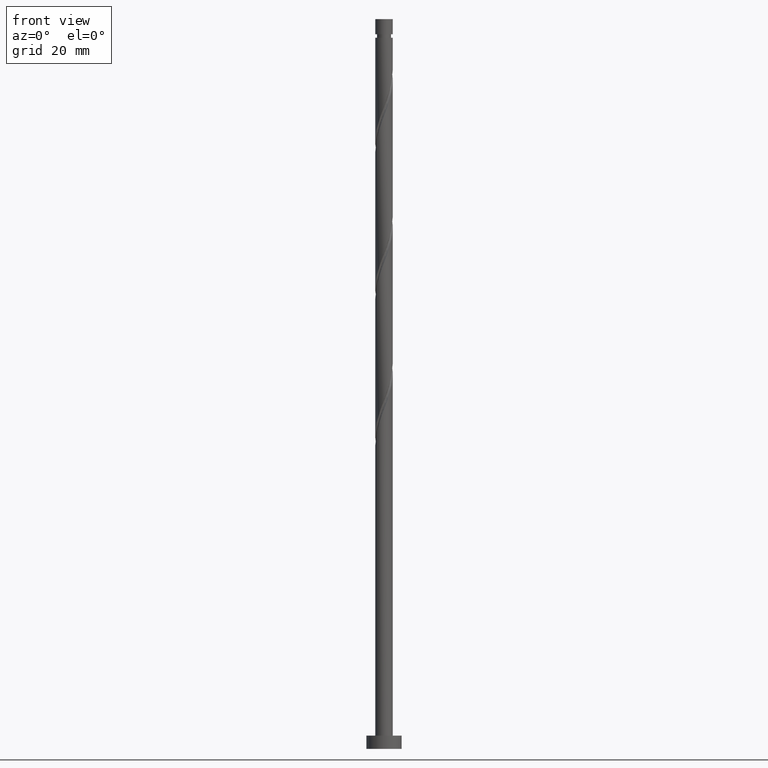
[diagram: clean part render]
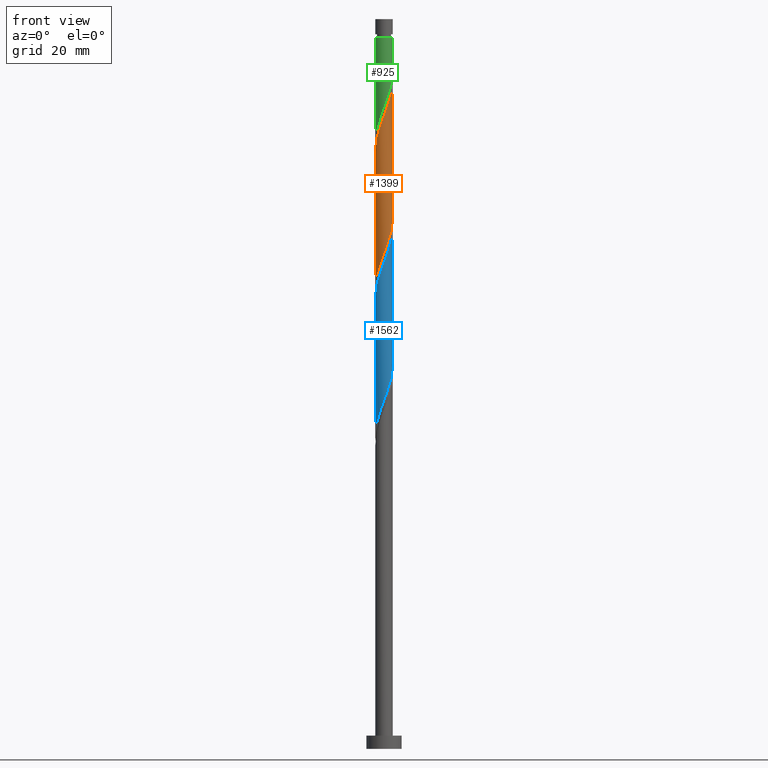
[diagram: same view with three faces highlighted in distinct colors, each labeled with its STEP entity id]
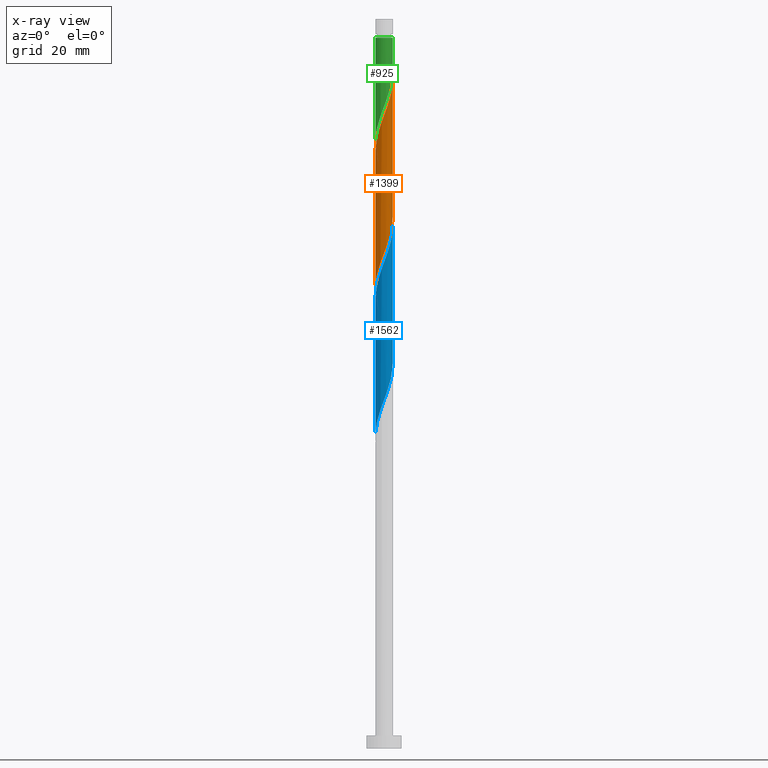
[diagram: x-ray of the same camera — body ghosted, the three highlighted faces saturated]
A machine part, front view with three faces highlighted in distinct colors.
The next image is the same camera in x-ray (body ghosted, the three faces saturated) — at least one of them is partly hidden behind the body in this view.
Their STEP definitions:

[orange] entity #1399 — the highlighted cylindrical surface (edge-blend (fillet) strip) has radius 2 mm, axis along (-0, -0, -1).
#20 = CARTESIAN_POINT ( 'NONE',  ( 1.896407278838826205, -0.6353262412077200771, 150.4508639589602979 ) ) ;
#27 = CARTESIAN_POINT ( 'NONE',  ( 1.127404036555501587, -1.672808912829666150, 146.9786417367380693 ) ) ;
#35 = CARTESIAN_POINT ( 'NONE',  ( 1.521943481029064404, -1.324015695162691131, 148.3675306256269550 ) ) ;
#43 = CARTESIAN_POINT ( 'NONE',  ( 0.8917189533347230634, -1.790205940182200806, 146.2841972922936122 ) ) ;
#50 = CARTESIAN_POINT ( 'NONE',  ( 1.324673758792282996, -1.498412303996178530, 147.6730861811824980 ) ) ;
#76 = VECTOR ( 'NONE', #598, 1000.000000000000000 ) ;
#78 = CYLINDRICAL_SURFACE ( 'NONE', #1238, 2.000000000000000000 ) ;
#103 = LINE ( 'NONE', #1595, #358 ) ;
#159 = CARTESIAN_POINT ( 'NONE',  ( 0.6560338701139444284, -1.907602967534735683, 145.5897528478492120 ) ) ;
#168 = CARTESIAN_POINT ( 'NONE',  ( -2.000000000000003109, -3.259925008709154373E-15, 135.4984084148613590 ) ) ;
#176 = CARTESIAN_POINT ( 'NONE',  ( -1.960000000000003073, -0.3979949748426484524, 136.5619750700714121 ) ) ;
#181 = CARTESIAN_POINT ( 'NONE',  ( 1.324015695162687356, -1.521943481029063072, 116.4230861811825406 ) ) ;
#183 = CARTESIAN_POINT ( 'NONE',  ( 2.000000000000002665, -7.476892221809986216E-16, 152.1650750815280162 ) ) ;
#188 = CARTESIAN_POINT ( 'NONE',  ( 1.907602967534731464, -0.6560338701139456496, 119.2008639589602979 ) ) ;
#250 = CARTESIAN_POINT ( 'NONE',  ( -0.6560338701139450945, -1.907602967534731686, 110.8675306256269693 ) ) ;
#272 = ORIENTED_EDGE ( 'NONE', *, *, #647, .F. ) ;
#346 = CARTESIAN_POINT ( 'NONE',  ( 2.000000000000002665, -7.476892221809986216E-16, 152.1650750815280162 ) ) ;
#358 = VECTOR ( 'NONE', #1424, 1000.000000000000000 ) ;
#391 = CARTESIAN_POINT ( 'NONE',  ( -1.980049565276632340, -0.3856594865056691690, 105.3119750700714405 ) ) ;
#401 = CARTESIAN_POINT ( 'NONE',  ( -1.127404036555501143, -1.672808912829663486, 109.4786417367380551 ) ) ;
#411 = EDGE_CURVE ( 'NONE', #951, #476, #1138, .T. ) ;
#434 = CARTESIAN_POINT ( 'NONE',  ( 0.3979949748426483414, -1.960000000000003073, 144.8953084034047265 ) ) ;
#451 = CARTESIAN_POINT ( 'NONE',  ( 1.667354236715040461, -1.104504345536229781, 149.0619750700714121 ) ) ;
#474 = CARTESIAN_POINT ( 'NONE',  ( -2.000000000000000000, 0.000000000000000000, 165.8000000000000114 ) ) ;
#476 = VERTEX_POINT ( 'NONE', #1129 ) ;
#498 = CARTESIAN_POINT ( 'NONE',  ( 1.104504345536225562, -1.667354236715039129, 115.7286417367380693 ) ) ;
#507 = CARTESIAN_POINT ( 'NONE',  ( -1.896407278838823096, -0.6353262412077171906, 106.0064195145158408 ) ) ;
#551 = CARTESIAN_POINT ( 'NONE',  ( 1.999999999999999556, -2.624389169855325064E-15, 120.9588750586148080 ) ) ;
#574 = CARTESIAN_POINT ( 'NONE',  ( 2.000000000000002665, -0.06148390331534844822, 152.0019113934998529 ) ) ;
#593 = CARTESIAN_POINT ( 'NONE',  ( 1.996223298870952290, -0.1228517034671606500, 151.8397528478491267 ) ) ;
#598 = DIRECTION ( 'NONE',  ( -0.000000000000000000, -0.000000000000000000, -1.000000000000000000 ) ) ;
#612 = CARTESIAN_POINT ( 'NONE',  ( 1.999999999999999556, -2.624389169855325064E-15, 120.9588750586148223 ) ) ;
#647 = EDGE_CURVE ( 'NONE', #1646, #476, #1680, .T. ) ;
#657 = CARTESIAN_POINT ( 'NONE',  ( -1.999999999999999556, -0.06148390331534546449, 104.4553720799762857 ) ) ;
#665 = CARTESIAN_POINT ( 'NONE',  ( -1.521943481029063072, -1.324015695162687578, 108.0897528478491836 ) ) ;
#718 = CARTESIAN_POINT ( 'NONE',  ( -2.000000000000003109, -3.259925008709154373E-15, 135.4984084148613590 ) ) ;
#798 = CARTESIAN_POINT ( 'NONE',  ( -1.324673758792281886, -1.498412303996174755, 108.7841972922936264 ) ) ;
#837 = CARTESIAN_POINT ( 'NONE',  ( -1.672808912829666150, -1.127404036555502254, 138.6453084034047833 ) ) ;
#843 = CARTESIAN_POINT ( 'NONE',  ( -0.8849929959097680987, -1.812764992401018072, 141.4230861811825264 ) ) ;
#883 =( BOUNDED_CURVE ( )  B_SPLINE_CURVE ( 2, ( #168, #1132, #176, #1383, #1263, #837, #1374, #1637, #994, #843, #1246, #970, #1228, #1237, #434, #159, #43, #27, #50, #35, #451, #1105, #20, #1257, #593, #574, #183 ),
 .UNSPECIFIED., .F., .T. ) 
 B_SPLINE_CURVE_WITH_KNOTS ( ( 3, 2, 2, 2, 2, 2, 2, 2, 2, 2, 2, 2, 2, 3 ),
 ( 0.5545317669814461281, 0.5625000000000000000, 0.5729166666666667407, 0.5833333333333332593, 0.5937500000000000000, 0.6041666666666667407, 0.6145833333333332593, 0.6250000000000000000, 0.6354166666666667407, 0.6458333333333332593, 0.6562500000000000000, 0.6666666666666667407, 0.6770833333333332593, 0.6795317669814462391 ),
 .UNSPECIFIED. ) 
 CURVE ( )  GEOMETRIC_REPRESENTATION_ITEM ( )  RATIONAL_B_SPLINE_CURVE ( ( 0.9062941362546513835, 0.9031415850403554657, 0.9090909090909310430, 0.9013135103398492998, 0.9090909090909310430, 0.9013135103398492998, 0.9090909090909310430, 0.9013135103398492998, 0.9090909090909310430, 0.9013135103398492998, 0.9090909090909310430, 0.9013135103398492998, 0.9090909090909310430, 0.9013135103398492998, 0.9090909090909310430, 0.9013135103398492998, 0.9090909090909310430, 0.9013135103398492998, 0.9090909090909310430, 0.9013135103398492998, 0.9090909090909310430, 0.9013135103398492998, 0.9090909090909310430, 0.9013135103398492998, 0.9090909090909310430, 0.9072628343904247661, 0.9062941362546513835 ) ) 
 REPRESENTATION_ITEM ( '' )  );
#896 = CARTESIAN_POINT ( 'NONE',  ( 1.672808912829662376, -1.127404036555502032, 117.8119750700714121 ) ) ;
#926 = CARTESIAN_POINT ( 'NONE',  ( -1.999999999999999556, 2.138391175437672464E-15, 104.2922083919481508 ) ) ;
#951 = VERTEX_POINT ( 'NONE', #718 ) ;
#970 = CARTESIAN_POINT ( 'NONE',  ( -0.3856594865056708343, -1.980049565276635226, 142.8119750700714405 ) ) ;
#994 = CARTESIAN_POINT ( 'NONE',  ( -1.104504345536228671, -1.667354236715041127, 140.7286417367380125 ) ) ;
#1039 = CARTESIAN_POINT ( 'NONE',  ( -1.996223298870949403, -0.1228517034671583186, 104.6175306256269550 ) ) ;
#1045 = FACE_OUTER_BOUND ( 'NONE', #1335, .T. ) ;
#1054 = DIRECTION ( 'NONE',  ( -1.000000000000000000, 0.000000000000000000, 0.000000000000000000 ) ) ;
#1064 = EDGE_CURVE ( 'NONE', #951, #1164, #883, .T. ) ;
#1105 = CARTESIAN_POINT ( 'NONE',  ( 1.812764992401017849, -0.8849929959097680987, 149.7564195145157839 ) ) ;
#1129 = CARTESIAN_POINT ( 'NONE',  ( -1.999999999999999556, 2.138391175437672464E-15, 104.2922083919481508 ) ) ;
#1132 = CARTESIAN_POINT ( 'NONE',  ( -2.000000000000003553, -0.2010075630518398104, 136.0318347840506306 ) ) ;
#1138 = LINE ( 'NONE', #474, #76 ) ;
#1146 = CARTESIAN_POINT ( 'NONE',  ( 2.000000000000000000, -0.2010075630518413370, 120.4254486894255365 ) ) ;
#1164 = VERTEX_POINT ( 'NONE', #346 ) ;
#1170 = CARTESIAN_POINT ( 'NONE',  ( 0.1228517034671577218, -1.996223298870949403, 112.9508639589602979 ) ) ;
#1174 = DIRECTION ( 'NONE',  ( -0.000000000000000000, -0.000000000000000000, -1.000000000000000000 ) ) ;
#1178 = CARTESIAN_POINT ( 'NONE',  ( -1.812764992401016073, -0.8849929959097654342, 106.7008639589603121 ) ) ;
#1228 = CARTESIAN_POINT ( 'NONE',  ( -0.1228517034671596508, -1.996223298870952290, 143.5064195145158408 ) ) ;
#1237 = CARTESIAN_POINT ( 'NONE',  ( 0.1399560795713515327, -2.012397032465270463, 144.2008639589602694 ) ) ;
#1238 = AXIS2_PLACEMENT_3D ( 'NONE', #1569, #1174, #1054 ) ;
#1246 = CARTESIAN_POINT ( 'NONE',  ( -0.6353262412077199661, -1.896407278838826205, 142.1175306256270119 ) ) ;
#1257 = CARTESIAN_POINT ( 'NONE',  ( 1.980049565276634782, -0.3856594865056718335, 151.1453084034047549 ) ) ;
#1262 = CARTESIAN_POINT ( 'NONE',  ( 0.8849929959097654342, -1.812764992401016073, 115.0341972922936549 ) ) ;
#1263 = CARTESIAN_POINT ( 'NONE',  ( -1.790205940182200361, -0.8917189533347235075, 137.9508639589602694 ) ) ;
#1269 = CARTESIAN_POINT ( 'NONE',  ( 0.6353262412077169685, -1.896407278838823318, 114.3397528478491552 ) ) ;
#1321 = CARTESIAN_POINT ( 'NONE',  ( -0.1399560795713530592, -2.012397032465266911, 112.2564195145158408 ) ) ;
#1331 = CARTESIAN_POINT ( 'NONE',  ( -1.667354236715038462, -1.104504345536226229, 107.3953084034047123 ) ) ;
#1335 = EDGE_LOOP ( 'NONE', ( #1453, #1343, #1487, #272 ) ) ;
#1343 = ORIENTED_EDGE ( 'NONE', *, *, #1064, .F. ) ;
#1374 = CARTESIAN_POINT ( 'NONE',  ( -1.498412303996178307, -1.324673758792283218, 139.3397528478491552 ) ) ;
#1383 = CARTESIAN_POINT ( 'NONE',  ( -1.907602967534735683, -0.6560338701139445394, 137.2564195145158976 ) ) ;
#1399 = ADVANCED_FACE ( 'NONE', ( #1045 ), #78, .T. ) ;
#1402 = CARTESIAN_POINT ( 'NONE',  ( 1.959999999999999520, -0.3979949748426485079, 119.8953084034047123 ) ) ;
#1424 = DIRECTION ( 'NONE',  ( -0.000000000000000000, -0.000000000000000000, -1.000000000000000000 ) ) ;
#1453 = ORIENTED_EDGE ( 'NONE', *, *, #1501, .F. ) ;
#1466 = CARTESIAN_POINT ( 'NONE',  ( -0.3979949748426485079, -1.959999999999999520, 111.5619750700713837 ) ) ;
#1474 = CARTESIAN_POINT ( 'NONE',  ( -0.8917189533347229524, -1.790205940182196809, 110.1730861811824980 ) ) ;
#1487 = ORIENTED_EDGE ( 'NONE', *, *, #411, .T. ) ;
#1501 = EDGE_CURVE ( 'NONE', #1164, #1646, #103, .T. ) ;
#1569 = CARTESIAN_POINT ( 'NONE',  ( 0.000000000000000000, 0.000000000000000000, 165.8000000000000114 ) ) ;
#1595 = CARTESIAN_POINT ( 'NONE',  ( 2.000000000000000000, 2.449293598294706414E-16, 165.8000000000000114 ) ) ;
#1637 = CARTESIAN_POINT ( 'NONE',  ( -1.324015695162691131, -1.521943481029064404, 140.0341972922936407 ) ) ;
#1646 = VERTEX_POINT ( 'NONE', #551 ) ;
#1680 =( BOUNDED_CURVE ( )  B_SPLINE_CURVE ( 2, ( #612, #1146, #1402, #188, #1684, #896, #1701, #181, #498, #1262, #1269, #1740, #1170, #1321, #1466, #250, #1474, #401, #798, #665, #1331, #1178, #507, #391, #1039, #657, #926 ),
 .UNSPECIFIED., .F., .T. ) 
 B_SPLINE_CURVE_WITH_KNOTS ( ( 3, 2, 2, 2, 2, 2, 2, 2, 2, 2, 2, 2, 2, 3 ),
 ( 0.5545317669814462391, 0.5625000000000000000, 0.5729166666666666297, 0.5833333333333333703, 0.5937500000000000000, 0.6041666666666666297, 0.6145833333333333703, 0.6250000000000000000, 0.6354166666666666297, 0.6458333333333333703, 0.6562500000000000000, 0.6666666666666666297, 0.6770833333333333703, 0.6795317669814463502 ),
 .UNSPECIFIED. ) 
 CURVE ( )  GEOMETRIC_REPRESENTATION_ITEM ( )  RATIONAL_B_SPLINE_CURVE ( ( 0.9062941362546447222, 0.9031415850403488044, 0.9090909090909243817, 0.9013135103398426384, 0.9090909090909243817, 0.9013135103398426384, 0.9090909090909243817, 0.9013135103398426384, 0.9090909090909243817, 0.9013135103398426384, 0.9090909090909243817, 0.9013135103398426384, 0.9090909090909243817, 0.9013135103398426384, 0.9090909090909243817, 0.9013135103398426384, 0.9090909090909243817, 0.9013135103398426384, 0.9090909090909243817, 0.9013135103398426384, 0.9090909090909243817, 0.9013135103398426384, 0.9090909090909243817, 0.9013135103398426384, 0.9090909090909243817, 0.9072628343904179937, 0.9062941362546445001 ) ) 
 REPRESENTATION_ITEM ( '' )  );
#1684 = CARTESIAN_POINT ( 'NONE',  ( 1.790205940182196587, -0.8917189533347237296, 118.5064195145158550 ) ) ;
#1701 = CARTESIAN_POINT ( 'NONE',  ( 1.498412303996174755, -1.324673758792282108, 117.1175306256269408 ) ) ;
#1740 = CARTESIAN_POINT ( 'NONE',  ( 0.3856594865056685584, -1.980049565276632340, 113.6453084034047407 ) ) ;

[blue] entity #1562 — the highlighted cylindrical surface (edge-blend (fillet) strip) has radius 2 mm, axis along (-0, -0, -1).
#5 = DIRECTION ( 'NONE',  ( -0.000000000000000000, -0.000000000000000000, -1.000000000000000000 ) ) ;
#33 = CARTESIAN_POINT ( 'NONE',  ( 1.996223298870952290, -0.1228517034671606500, 118.5064195145158408 ) ) ;
#40 = CARTESIAN_POINT ( 'NONE',  ( 1.667354236715040461, -1.104504345536229781, 115.7286417367380693 ) ) ;
#75 = CARTESIAN_POINT ( 'NONE',  ( 0.3856594865056685584, -1.980049565276632340, 80.31197507007142633 ) ) ;
#87 = CARTESIAN_POINT ( 'NONE',  ( 1.498412303996174755, -1.324673758792282108, 83.78419729229362645 ) ) ;
#96 = CARTESIAN_POINT ( 'NONE',  ( -1.996223298870949403, -0.1228517034671583186, 71.28419729229362645 ) ) ;
#111 = CARTESIAN_POINT ( 'NONE',  ( -1.104504345536228671, -1.667354236715041127, 107.3953084034047407 ) ) ;
#138 =( BOUNDED_CURVE ( )  B_SPLINE_CURVE ( 2, ( #1723, #520, #1059, #929, #1457, #242, #792, #1325, #111, #1600, #431, #319, #1102, #712, #308, #1627, #1644, #1093, #858, #440, #40, #849, #1244, #1379, #33, #449, #173 ),
 .UNSPECIFIED., .F., .T. ) 
 B_SPLINE_CURVE_WITH_KNOTS ( ( 3, 2, 2, 2, 2, 2, 2, 2, 2, 2, 2, 2, 2, 3 ),
 ( 0.3045317669814463502, 0.3125000000000000000, 0.3229166666666666297, 0.3333333333333333703, 0.3437500000000000000, 0.3541666666666666297, 0.3645833333333333703, 0.3750000000000000000, 0.3854166666666666297, 0.3958333333333333703, 0.4062500000000000000, 0.4166666666666666297, 0.4270833333333333703, 0.4295317669814466277 ),
 .UNSPECIFIED. ) 
 CURVE ( )  GEOMETRIC_REPRESENTATION_ITEM ( )  RATIONAL_B_SPLINE_CURVE ( ( 0.9062941362546511614, 0.9031415850403554657, 0.9090909090909310430, 0.9013135103398492998, 0.9090909090909310430, 0.9013135103398492998, 0.9090909090909310430, 0.9013135103398492998, 0.9090909090909310430, 0.9013135103398492998, 0.9090909090909310430, 0.9013135103398492998, 0.9090909090909310430, 0.9013135103398492998, 0.9090909090909310430, 0.9013135103398492998, 0.9090909090909310430, 0.9013135103398492998, 0.9090909090909310430, 0.9013135103398492998, 0.9090909090909310430, 0.9013135103398492998, 0.9090909090909310430, 0.9013135103398492998, 0.9090909090909310430, 0.9072628343904245440, 0.9062941362546510504 ) ) 
 REPRESENTATION_ITEM ( '' )  );
#150 = VERTEX_POINT ( 'NONE', #1182 ) ;
#167 = EDGE_CURVE ( 'NONE', #271, #150, #138, .T. ) ;
#173 = CARTESIAN_POINT ( 'NONE',  ( 2.000000000000002665, -8.972270666171985530E-17, 118.8317417481946876 ) ) ;
#210 = LINE ( 'NONE', #326, #278 ) ;
#236 = DIRECTION ( 'NONE',  ( -0.000000000000000000, -0.000000000000000000, -1.000000000000000000 ) ) ;
#242 = CARTESIAN_POINT ( 'NONE',  ( -1.672808912829666150, -1.127404036555502254, 105.3119750700714548 ) ) ;
#244 = CYLINDRICAL_SURFACE ( 'NONE', #888, 2.000000000000000000 ) ;
#266 = CARTESIAN_POINT ( 'NONE',  ( 1.959999999999999520, -0.3979949748426485079, 86.56197507007141212 ) ) ;
#271 = VERTEX_POINT ( 'NONE', #563 ) ;
#278 = VECTOR ( 'NONE', #360, 1000.000000000000000 ) ;
#279 = EDGE_LOOP ( 'NONE', ( #565, #1010, #942, #500 ) ) ;
#308 = CARTESIAN_POINT ( 'NONE',  ( 0.3979949748426483414, -1.960000000000003073, 111.5619750700713837 ) ) ;
#319 = CARTESIAN_POINT ( 'NONE',  ( -0.3856594865056708343, -1.980049565276635226, 109.4786417367380977 ) ) ;
#326 = CARTESIAN_POINT ( 'NONE',  ( -2.000000000000000000, 0.000000000000000000, 165.8000000000000114 ) ) ;
#335 = CARTESIAN_POINT ( 'NONE',  ( -1.812764992401016073, -0.8849929959097654342, 73.36753062562694083 ) ) ;
#343 = CARTESIAN_POINT ( 'NONE',  ( -1.896407278838823096, -0.6353262412077171906, 72.67308618118248376 ) ) ;
#354 = CARTESIAN_POINT ( 'NONE',  ( 1.324015695162687356, -1.521943481029063072, 83.08975284784921200 ) ) ;
#360 = DIRECTION ( 'NONE',  ( -0.000000000000000000, -0.000000000000000000, -1.000000000000000000 ) ) ;
#374 = CARTESIAN_POINT ( 'NONE',  ( 1.907602967534731464, -0.6560338701139456496, 85.86753062562698346 ) ) ;
#431 = CARTESIAN_POINT ( 'NONE',  ( -0.6353262412077199661, -1.896407278838826205, 108.7841972922935980 ) ) ;
#440 = CARTESIAN_POINT ( 'NONE',  ( 1.521943481029064404, -1.324015695162691131, 115.0341972922936407 ) ) ;
#449 = CARTESIAN_POINT ( 'NONE',  ( 2.000000000000003109, -0.06148390331534081543, 118.6685780601665243 ) ) ;
#494 = CARTESIAN_POINT ( 'NONE',  ( 1.672808912829662376, -1.127404036555502032, 84.47864173673808352 ) ) ;
#496 = CARTESIAN_POINT ( 'NONE',  ( -1.999999999999999556, -3.454324206476239315E-15, 70.95887505861480804 ) ) ;
#500 = ORIENTED_EDGE ( 'NONE', *, *, #1689, .F. ) ;
#512 = CARTESIAN_POINT ( 'NONE',  ( 1.790205940182196587, -0.8917189533347237296, 85.17308618118249797 ) ) ;
#520 = CARTESIAN_POINT ( 'NONE',  ( -2.000000000000002665, -0.2010075630518432244, 102.6985014507172735 ) ) ;
#545 =( BOUNDED_CURVE ( )  B_SPLINE_CURVE ( 2, ( #943, #1479, #266, #374, #512, #494, #87, #354, #753, #1148, #874, #75, #650, #1438, #1184, #774, #891, #1557, #1307, #745, #1430, #335, #343, #900, #96, #1280, #1414 ),
 .UNSPECIFIED., .F., .T. ) 
 B_SPLINE_CURVE_WITH_KNOTS ( ( 3, 2, 2, 2, 2, 2, 2, 2, 2, 2, 2, 2, 2, 3 ),
 ( 0.8045317669814464612, 0.8125000000000000000, 0.8229166666666666297, 0.8333333333333333703, 0.8437500000000000000, 0.8541666666666666297, 0.8645833333333333703, 0.8750000000000000000, 0.8854166666666666297, 0.8958333333333333703, 0.9062500000000000000, 0.9166666666666666297, 0.9270833333333333703, 0.9295317669814462391 ),
 .UNSPECIFIED. ) 
 CURVE ( )  GEOMETRIC_REPRESENTATION_ITEM ( )  RATIONAL_B_SPLINE_CURVE ( ( 0.9062941362546445001, 0.9031415850403490264, 0.9090909090909243817, 0.9013135103398426384, 0.9090909090909243817, 0.9013135103398426384, 0.9090909090909243817, 0.9013135103398426384, 0.9090909090909243817, 0.9013135103398426384, 0.9090909090909243817, 0.9013135103398426384, 0.9090909090909243817, 0.9013135103398426384, 0.9090909090909243817, 0.9013135103398426384, 0.9090909090909243817, 0.9013135103398426384, 0.9090909090909243817, 0.9013135103398426384, 0.9090909090909243817, 0.9013135103398426384, 0.9090909090909243817, 0.9013135103398426384, 0.9090909090909243817, 0.9072628343904182158, 0.9062941362546447222 ) ) 
 REPRESENTATION_ITEM ( '' )  );
#563 = CARTESIAN_POINT ( 'NONE',  ( -2.000000000000002665, 4.448750871976942425E-15, 102.1650750815280020 ) ) ;
#565 = ORIENTED_EDGE ( 'NONE', *, *, #1639, .F. ) ;
#588 = VECTOR ( 'NONE', #5, 1000.000000000000000 ) ;
#626 = EDGE_CURVE ( 'NONE', #271, #1478, #210, .T. ) ;
#650 = CARTESIAN_POINT ( 'NONE',  ( 0.1228517034671577218, -1.996223298870949403, 79.61753062562695504 ) ) ;
#679 = LINE ( 'NONE', #1204, #588 ) ;
#712 = CARTESIAN_POINT ( 'NONE',  ( 0.1399560795713515327, -2.012397032465270463, 110.8675306256269835 ) ) ;
#745 = CARTESIAN_POINT ( 'NONE',  ( -1.521943481029063072, -1.324015695162687578, 74.75641951451584077 ) ) ;
#753 = CARTESIAN_POINT ( 'NONE',  ( 1.104504345536225562, -1.667354236715039129, 82.39530840340475493 ) ) ;
#774 = CARTESIAN_POINT ( 'NONE',  ( -0.6560338701139450945, -1.907602967534731686, 77.53419729229364066 ) ) ;
#776 = CARTESIAN_POINT ( 'NONE',  ( 0.000000000000000000, 0.000000000000000000, 165.8000000000000114 ) ) ;
#792 = CARTESIAN_POINT ( 'NONE',  ( -1.498412303996178307, -1.324673758792283218, 106.0064195145158550 ) ) ;
#795 = DIRECTION ( 'NONE',  ( -1.000000000000000000, 0.000000000000000000, 0.000000000000000000 ) ) ;
#849 = CARTESIAN_POINT ( 'NONE',  ( 1.812764992401017849, -0.8849929959097680987, 116.4230861811825406 ) ) ;
#858 = CARTESIAN_POINT ( 'NONE',  ( 1.324673758792282996, -1.498412303996178530, 114.3397528478491836 ) ) ;
#874 = CARTESIAN_POINT ( 'NONE',  ( 0.6353262412077169685, -1.896407278838823318, 81.00641951451585498 ) ) ;
#888 = AXIS2_PLACEMENT_3D ( 'NONE', #776, #236, #795 ) ;
#891 = CARTESIAN_POINT ( 'NONE',  ( -0.8917189533347229524, -1.790205940182196809, 76.83975284784919779 ) ) ;
#900 = CARTESIAN_POINT ( 'NONE',  ( -1.980049565276632340, -0.3856594865056691690, 71.97864173673806931 ) ) ;
#929 = CARTESIAN_POINT ( 'NONE',  ( -1.907602967534735683, -0.6560338701139445394, 103.9230861811825264 ) ) ;
#942 = ORIENTED_EDGE ( 'NONE', *, *, #626, .T. ) ;
#943 = CARTESIAN_POINT ( 'NONE',  ( 1.999999999999999556, -2.624389169855325064E-15, 87.62554172528147944 ) ) ;
#1010 = ORIENTED_EDGE ( 'NONE', *, *, #167, .F. ) ;
#1059 = CARTESIAN_POINT ( 'NONE',  ( -1.960000000000003073, -0.3979949748426484524, 103.2286417367380693 ) ) ;
#1093 = CARTESIAN_POINT ( 'NONE',  ( 1.127404036555501587, -1.672808912829666150, 113.6453084034047265 ) ) ;
#1102 = CARTESIAN_POINT ( 'NONE',  ( -0.1228517034671596508, -1.996223298870952290, 110.1730861811825122 ) ) ;
#1127 = CARTESIAN_POINT ( 'NONE',  ( 1.999999999999999556, -2.624389169855325064E-15, 87.62554172528147944 ) ) ;
#1148 = CARTESIAN_POINT ( 'NONE',  ( 0.8849929959097654342, -1.812764992401016073, 81.70086395896031206 ) ) ;
#1182 = CARTESIAN_POINT ( 'NONE',  ( 2.000000000000002665, -8.972270666171985530E-17, 118.8317417481947018 ) ) ;
#1184 = CARTESIAN_POINT ( 'NONE',  ( -0.3979949748426485079, -1.959999999999999520, 78.22864173673805510 ) ) ;
#1204 = CARTESIAN_POINT ( 'NONE',  ( 2.000000000000000000, 2.449293598294706414E-16, 165.8000000000000114 ) ) ;
#1244 = CARTESIAN_POINT ( 'NONE',  ( 1.896407278838826205, -0.6353262412077200771, 117.1175306256269693 ) ) ;
#1271 = VERTEX_POINT ( 'NONE', #1127 ) ;
#1280 = CARTESIAN_POINT ( 'NONE',  ( -1.999999999999999112, -0.06148390331534825393, 71.12203874664297132 ) ) ;
#1307 = CARTESIAN_POINT ( 'NONE',  ( -1.324673758792281886, -1.498412303996174755, 75.45086395896028364 ) ) ;
#1325 = CARTESIAN_POINT ( 'NONE',  ( -1.324015695162691131, -1.521943481029064404, 106.7008639589602979 ) ) ;
#1379 = CARTESIAN_POINT ( 'NONE',  ( 1.980049565276634782, -0.3856594865056718335, 117.8119750700713837 ) ) ;
#1414 = CARTESIAN_POINT ( 'NONE',  ( -1.999999999999999556, -3.454324206476239315E-15, 70.95887505861480804 ) ) ;
#1430 = CARTESIAN_POINT ( 'NONE',  ( -1.667354236715038462, -1.104504345536226229, 74.06197507007139791 ) ) ;
#1438 = CARTESIAN_POINT ( 'NONE',  ( -0.1399560795713530592, -2.012397032465266911, 78.92308618118254060 ) ) ;
#1440 = FACE_OUTER_BOUND ( 'NONE', #279, .T. ) ;
#1457 = CARTESIAN_POINT ( 'NONE',  ( -1.790205940182200361, -0.8917189533347235075, 104.6175306256269693 ) ) ;
#1478 = VERTEX_POINT ( 'NONE', #496 ) ;
#1479 = CARTESIAN_POINT ( 'NONE',  ( 1.999999999999998668, -0.2010075630518468326, 87.09211535609219368 ) ) ;
#1557 = CARTESIAN_POINT ( 'NONE',  ( -1.127404036555501143, -1.672808912829663486, 76.14530840340474072 ) ) ;
#1562 = ADVANCED_FACE ( 'NONE', ( #1440 ), #244, .T. ) ;
#1600 = CARTESIAN_POINT ( 'NONE',  ( -0.8849929959097680987, -1.812764992401018072, 108.0897528478491836 ) ) ;
#1627 = CARTESIAN_POINT ( 'NONE',  ( 0.6560338701139444284, -1.907602967534735683, 112.2564195145158408 ) ) ;
#1639 = EDGE_CURVE ( 'NONE', #150, #1271, #679, .T. ) ;
#1644 = CARTESIAN_POINT ( 'NONE',  ( 0.8917189533347230634, -1.790205940182200806, 112.9508639589602836 ) ) ;
#1689 = EDGE_CURVE ( 'NONE', #1271, #1478, #545, .T. ) ;
#1723 = CARTESIAN_POINT ( 'NONE',  ( -2.000000000000002665, 4.448750871976943214E-15, 102.1650750815280020 ) ) ;

[green] entity #925 — the highlighted cylindrical surface (edge-blend (fillet) strip) has radius 2 mm, axis along (-0, -0, -1).
#24 = VECTOR ( 'NONE', #561, 1000.000000000000000 ) ;
#38 = CARTESIAN_POINT ( 'NONE',  ( -1.324673758792281886, -1.498412303996174755, 142.1175306256269550 ) ) ;
#109 = CARTESIAN_POINT ( 'NONE',  ( 1.790205940182196587, -0.8917189533347237296, 151.8397528478492120 ) ) ;
#136 = CARTESIAN_POINT ( 'NONE',  ( -1.667354236715038462, -1.104504345536226229, 140.7286417367380125 ) ) ;
#146 = CARTESIAN_POINT ( 'NONE',  ( -1.999999999999998668, -0.06148390331535274339, 137.7887054133096285 ) ) ;
#154 = CARTESIAN_POINT ( 'NONE',  ( -1.996223298870949403, -0.1228517034671583186, 137.9508639589602694 ) ) ;
#199 = EDGE_LOOP ( 'NONE', ( #539, #1714, #509, #1413 ) ) ;
#217 = CARTESIAN_POINT ( 'NONE',  ( -1.999999999999999556, -1.330886815482187283E-15, 137.6255417252814937 ) ) ;
#305 = LINE ( 'NONE', #965, #24 ) ;
#363 = LINE ( 'NONE', #1288, #1253 ) ;
#371 = CARTESIAN_POINT ( 'NONE',  ( 1.907602967534731464, -0.6560338701139456496, 152.5341972922936122 ) ) ;
#383 = CARTESIAN_POINT ( 'NONE',  ( 0.1228517034671577218, -1.996223298870949403, 146.2841972922936122 ) ) ;
#424 = CARTESIAN_POINT ( 'NONE',  ( -1.999999999999992228, 0.000000000000000000, 161.5619750700714121 ) ) ;
#509 = ORIENTED_EDGE ( 'NONE', *, *, #1736, .T. ) ;
#518 = CARTESIAN_POINT ( 'NONE',  ( 1.498412303996174755, -1.324673758792282108, 150.4508639589603263 ) ) ;
#527 = CARTESIAN_POINT ( 'NONE',  ( -0.6560338701139450945, -1.907602967534731686, 144.2008639589603263 ) ) ;
#539 = ORIENTED_EDGE ( 'NONE', *, *, #779, .F. ) ;
#561 = DIRECTION ( 'NONE',  ( -0.000000000000000000, -0.000000000000000000, -1.000000000000000000 ) ) ;
#569 = AXIS2_PLACEMENT_3D ( 'NONE', #813, #1091, #1656 ) ;
#575 = EDGE_CURVE ( 'NONE', #1324, #1019, #678, .T. ) ;
#579 = CARTESIAN_POINT ( 'NONE',  ( -1.896407278838823096, -0.6353262412077171906, 139.3397528478491552 ) ) ;
#589 = CARTESIAN_POINT ( 'NONE',  ( -1.999999999999999556, -1.330886815482187480E-15, 137.6255417252814937 ) ) ;
#638 = CARTESIAN_POINT ( 'NONE',  ( 1.104504345536225562, -1.667354236715039129, 149.0619750700713553 ) ) ;
#641 = DIRECTION ( 'NONE',  ( -0.000000000000000000, -0.000000000000000000, -1.000000000000000000 ) ) ;
#678 = CIRCLE ( 'NONE', #1210, 1.999999999999992228 ) ;
#709 = CARTESIAN_POINT ( 'NONE',  ( 1.999999999999999556, 8.075043599554843923E-16, 154.2922083919481224 ) ) ;
#752 = EDGE_CURVE ( 'NONE', #773, #1497, #945, .T. ) ;
#773 = VERTEX_POINT ( 'NONE', #709 ) ;
#779 = EDGE_CURVE ( 'NONE', #1324, #773, #305, .T. ) ;
#789 = CARTESIAN_POINT ( 'NONE',  ( -1.127404036555501143, -1.672808912829663486, 142.8119750700714405 ) ) ;
#813 = CARTESIAN_POINT ( 'NONE',  ( 0.000000000000000000, 0.000000000000000000, 165.8000000000000114 ) ) ;
#907 = CARTESIAN_POINT ( 'NONE',  ( 0.8849929959097654342, -1.812764992401016073, 148.3675306256269835 ) ) ;
#916 = CARTESIAN_POINT ( 'NONE',  ( 0.6353262412077169685, -1.896407278838823318, 147.6730861811825264 ) ) ;
#925 = ADVANCED_FACE ( 'NONE', ( #1649 ), #1083, .T. ) ;
#934 = CARTESIAN_POINT ( 'NONE',  ( 1.999999999999992228, 2.449293598294701484E-16, 161.5619750700714121 ) ) ;
#945 =( BOUNDED_CURVE ( )  B_SPLINE_CURVE ( 2, ( #1583, #1075, #1617, #371, #109, #1304, #518, #1591, #638, #907, #916, #1444, #383, #1190, #1454, #527, #1057, #789, #38, #1360, #136, #973, #579, #1482, #154, #146, #589 ),
 .UNSPECIFIED., .F., .T. ) 
 B_SPLINE_CURVE_WITH_KNOTS ( ( 3, 2, 2, 2, 2, 2, 2, 2, 2, 2, 2, 2, 2, 3 ),
 ( 0.3045317669814464057, 0.3125000000000000000, 0.3229166666666666852, 0.3333333333333333148, 0.3437500000000000000, 0.3541666666666666852, 0.3645833333333333148, 0.3750000000000000000, 0.3854166666666666852, 0.3958333333333333148, 0.4062500000000000000, 0.4166666666666666852, 0.4270833333333333148, 0.4295317669814460171 ),
 .UNSPECIFIED. ) 
 CURVE ( )  GEOMETRIC_REPRESENTATION_ITEM ( )  RATIONAL_B_SPLINE_CURVE ( ( 0.9062941362546447222, 0.9031415850403490264, 0.9090909090909243817, 0.9013135103398426384, 0.9090909090909243817, 0.9013135103398426384, 0.9090909090909243817, 0.9013135103398426384, 0.9090909090909243817, 0.9013135103398426384, 0.9090909090909243817, 0.9013135103398426384, 0.9090909090909243817, 0.9013135103398426384, 0.9090909090909243817, 0.9013135103398426384, 0.9090909090909243817, 0.9013135103398426384, 0.9090909090909243817, 0.9013135103398426384, 0.9090909090909243817, 0.9013135103398426384, 0.9090909090909243817, 0.9013135103398426384, 0.9090909090909243817, 0.9072628343904183268, 0.9062941362546449442 ) ) 
 REPRESENTATION_ITEM ( '' )  );
#965 = CARTESIAN_POINT ( 'NONE',  ( 2.000000000000000000, 2.449293598294706414E-16, 165.8000000000000114 ) ) ;
#973 = CARTESIAN_POINT ( 'NONE',  ( -1.812764992401016073, -0.8849929959097654342, 140.0341972922936122 ) ) ;
#1019 = VERTEX_POINT ( 'NONE', #424 ) ;
#1057 = CARTESIAN_POINT ( 'NONE',  ( -0.8917189533347229524, -1.790205940182196809, 143.5064195145158124 ) ) ;
#1075 = CARTESIAN_POINT ( 'NONE',  ( 1.999999999999999112, -0.2010075630518464995, 153.7587820227588509 ) ) ;
#1083 = CYLINDRICAL_SURFACE ( 'NONE', #569, 2.000000000000000000 ) ;
#1091 = DIRECTION ( 'NONE',  ( -0.000000000000000000, -0.000000000000000000, -1.000000000000000000 ) ) ;
#1162 = DIRECTION ( 'NONE',  ( -1.000000000000000000, 0.000000000000000000, 0.000000000000000000 ) ) ;
#1190 = CARTESIAN_POINT ( 'NONE',  ( -0.1399560795713530592, -2.012397032465266911, 145.5897528478492120 ) ) ;
#1210 = AXIS2_PLACEMENT_3D ( 'NONE', #1296, #1277, #1162 ) ;
#1253 = VECTOR ( 'NONE', #641, 1000.000000000000000 ) ;
#1277 = DIRECTION ( 'NONE',  ( -0.000000000000000000, -0.000000000000000000, -1.000000000000000000 ) ) ;
#1288 = CARTESIAN_POINT ( 'NONE',  ( -2.000000000000000000, 0.000000000000000000, 165.8000000000000114 ) ) ;
#1296 = CARTESIAN_POINT ( 'NONE',  ( 0.000000000000000000, 0.000000000000000000, 161.5619750700714121 ) ) ;
#1304 = CARTESIAN_POINT ( 'NONE',  ( 1.672808912829662376, -1.127404036555502032, 151.1453084034047265 ) ) ;
#1324 = VERTEX_POINT ( 'NONE', #934 ) ;
#1360 = CARTESIAN_POINT ( 'NONE',  ( -1.521943481029063072, -1.324015695162687578, 141.4230861811825548 ) ) ;
#1413 = ORIENTED_EDGE ( 'NONE', *, *, #752, .F. ) ;
#1444 = CARTESIAN_POINT ( 'NONE',  ( 0.3856594865056685584, -1.980049565276632340, 146.9786417367380977 ) ) ;
#1454 = CARTESIAN_POINT ( 'NONE',  ( -0.3979949748426485079, -1.959999999999999520, 144.8953084034047265 ) ) ;
#1482 = CARTESIAN_POINT ( 'NONE',  ( -1.980049565276632340, -0.3856594865056691690, 138.6453084034047549 ) ) ;
#1497 = VERTEX_POINT ( 'NONE', #217 ) ;
#1583 = CARTESIAN_POINT ( 'NONE',  ( 1.999999999999999556, 8.075043599554843923E-16, 154.2922083919481224 ) ) ;
#1591 = CARTESIAN_POINT ( 'NONE',  ( 1.324015695162687356, -1.521943481029063072, 149.7564195145158124 ) ) ;
#1617 = CARTESIAN_POINT ( 'NONE',  ( 1.959999999999999520, -0.3979949748426485079, 153.2286417367380693 ) ) ;
#1649 = FACE_OUTER_BOUND ( 'NONE', #199, .T. ) ;
#1656 = DIRECTION ( 'NONE',  ( -1.000000000000000000, 0.000000000000000000, 0.000000000000000000 ) ) ;
#1714 = ORIENTED_EDGE ( 'NONE', *, *, #575, .T. ) ;
#1736 = EDGE_CURVE ( 'NONE', #1019, #1497, #363, .T. ) ;